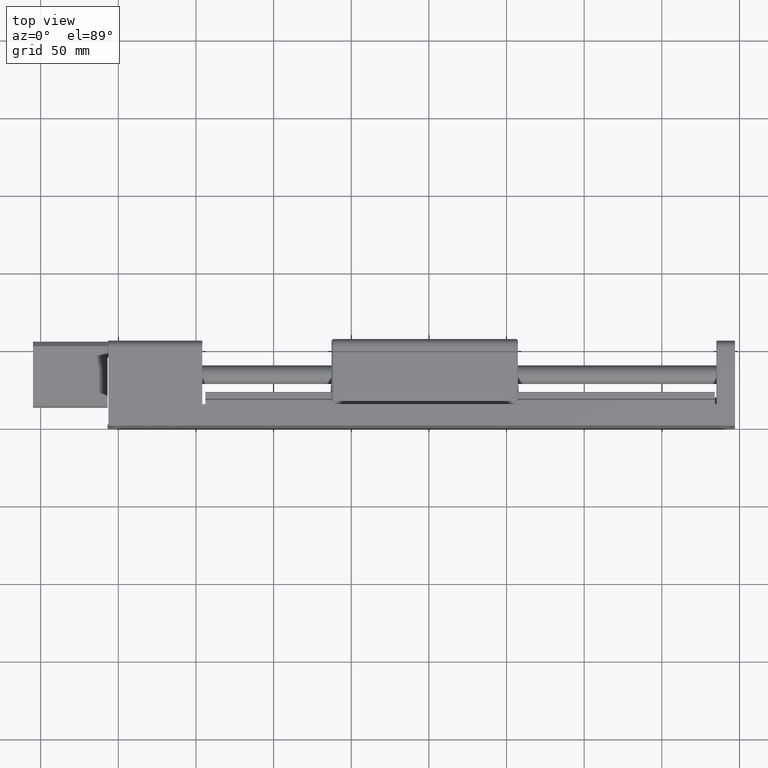
[diagram: clean part render]
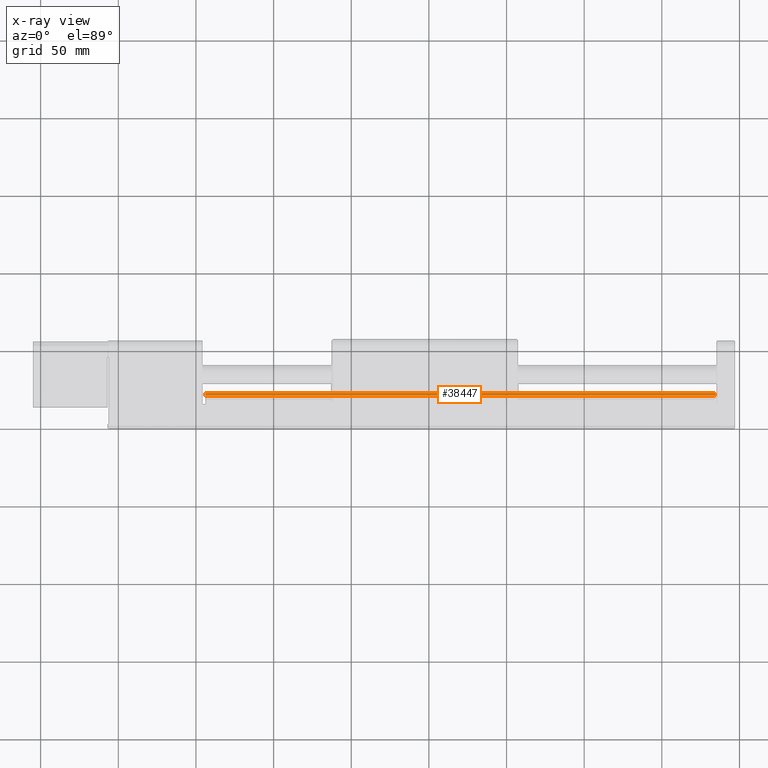
[diagram: x-ray — body ghosted, one internal face saturated and labeled with its STEP entity id]
A machine part, top view, then the same camera in x-ray: the body is ghosted and one INTERNAL B-rep face — a face not visible from any outside direction — is saturated and labeled: STEP entity #38447.
In plain terms, the highlighted planar face has unit normal (0, -0, 1).
Its self-contained STEP definition (entity closure, byte-faithful):
#1701 = DIRECTION ( 'NONE',  ( 2.078312025055936400E-017, -1.000000000000000000, -1.110223024625156500E-016 ) ) ;
#1801 = VERTEX_POINT ( 'NONE', #4754 ) ;
#4754 = CARTESIAN_POINT ( 'NONE',  ( 284.0905472185903600, 21.59999999999759300, -173.9944050297567100 ) ) ;
#5599 = LINE ( 'NONE', #39076, #9776 ) ;
#7380 = EDGE_LOOP ( 'NONE', ( #42162, #32673, #11717, #32502 ) ) ;
#7500 = CARTESIAN_POINT ( 'NONE',  ( -43.90945278140987500, 21.59999999999758600, -173.9944050297567100 ) ) ;
#8354 = DIRECTION ( 'NONE',  ( -2.078312025055936400E-017, 1.000000000000000000, 1.110223024625156500E-016 ) ) ;
#8740 = CARTESIAN_POINT ( 'NONE',  ( -114.0094527814098900, 19.99999999999758400, -173.9944050297567100 ) ) ;
#9776 = VECTOR ( 'NONE', #42367, 1000.000000000000000 ) ;
#11717 = ORIENTED_EDGE ( 'NONE', *, *, #28762, .F. ) ;
#13108 = DIRECTION ( 'NONE',  ( 1.369721307129392500E-017, -1.110223024625156500E-016, 1.000000000000000000 ) ) ;
#14891 = CARTESIAN_POINT ( 'NONE',  ( -43.90945278140989700, 11.99999999999758900, -173.9944050297567100 ) ) ;
#17805 = CARTESIAN_POINT ( 'NONE',  ( 284.0905472185901300, 17.03197352554111500, -173.9944050297567100 ) ) ;
#19981 = AXIS2_PLACEMENT_3D ( 'NONE', #23125, #13108, #36511 ) ;
#22510 = DIRECTION ( 'NONE',  ( 1.000000000000000000, 2.078312025055937000E-017, -1.369721307129392300E-017 ) ) ;
#23125 = CARTESIAN_POINT ( 'NONE',  ( -114.0094527814098900, 21.99999999999758400, -173.9944050297567100 ) ) ;
#23650 = VECTOR ( 'NONE', #8354, 1000.000000000000000 ) ;
#24714 = LINE ( 'NONE', #17805, #37047 ) ;
#28079 = EDGE_CURVE ( 'NONE', #1801, #30998, #24714, .T. ) ;
#28762 = EDGE_CURVE ( 'NONE', #39625, #30998, #30817, .T. ) ;
#30817 = LINE ( 'NONE', #8740, #40581 ) ;
#30998 = VERTEX_POINT ( 'NONE', #41850 ) ;
#32438 = LINE ( 'NONE', #14891, #23650 ) ;
#32502 = ORIENTED_EDGE ( 'NONE', *, *, #37693, .T. ) ;
#32673 = ORIENTED_EDGE ( 'NONE', *, *, #28079, .T. ) ;
#33874 = EDGE_CURVE ( 'NONE', #34724, #1801, #5599, .T. ) ;
#34724 = VERTEX_POINT ( 'NONE', #7500 ) ;
#36511 = DIRECTION ( 'NONE',  ( 1.000000000000000000, 2.078312025055937000E-017, -1.369721307129392300E-017 ) ) ;
#37047 = VECTOR ( 'NONE', #1701, 1000.000000000000000 ) ;
#37693 = EDGE_CURVE ( 'NONE', #39625, #34724, #32438, .T. ) ;
#38447 = ADVANCED_FACE ( 'NONE', ( #41116 ), #42827, .F. ) ;
#38624 = CARTESIAN_POINT ( 'NONE',  ( -43.90945278140990400, 19.99999999999758800, -173.9944050297567100 ) ) ;
#39076 = CARTESIAN_POINT ( 'NONE',  ( -114.0094527814098900, 21.59999999999758600, -173.9944050297567100 ) ) ;
#39625 = VERTEX_POINT ( 'NONE', #38624 ) ;
#40581 = VECTOR ( 'NONE', #22510, 1000.000000000000000 ) ;
#41116 = FACE_OUTER_BOUND ( 'NONE', #7380, .T. ) ;
#41850 = CARTESIAN_POINT ( 'NONE',  ( 284.0905472185901300, 19.99999999999759500, -173.9944050297567100 ) ) ;
#42162 = ORIENTED_EDGE ( 'NONE', *, *, #33874, .T. ) ;
#42367 = DIRECTION ( 'NONE',  ( 1.000000000000000000, 2.078312025055937000E-017, -1.369721307129392300E-017 ) ) ;
#42827 = PLANE ( 'NONE',  #19981 ) ;